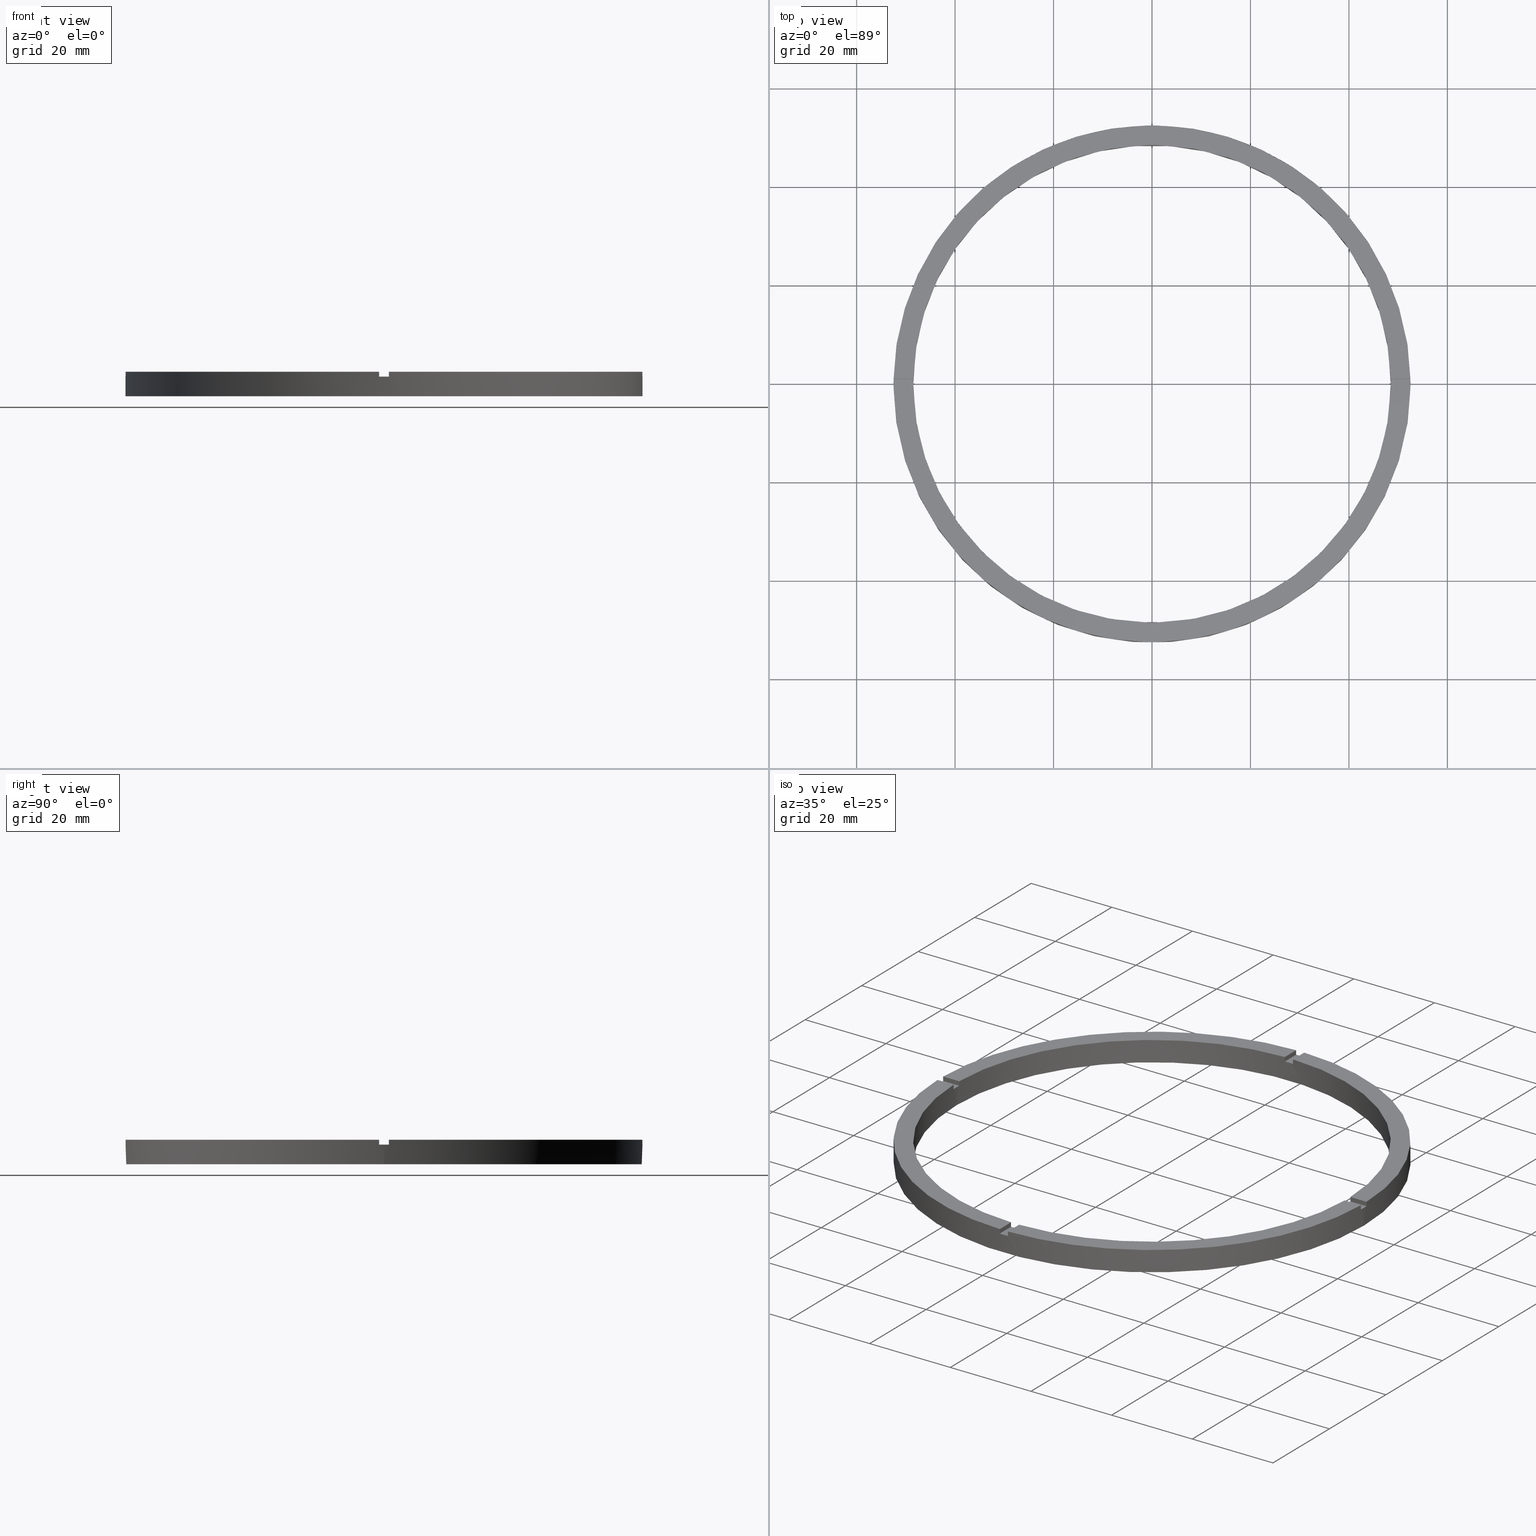
[diagram: canonical four-view strip — front | top / right | iso, engineering-drawing reading convention]
A machine part, canonical four-view strip (front | top / right | iso — engineering-drawing reading convention). The complete STEP part file that produces these views, byte-faithful:
ISO-10303-21;
HEADER;
FILE_DESCRIPTION (( 'STEP AP203' ),
    '1' );
FILE_NAME ('514215.step',
    '2024-12-26T02:48:53',
    ( 'MSI' ),
    ( '' ),
    'SwSTEP 2.0',
    'SolidWorks 2020',
    '' );
FILE_SCHEMA (( 'CONFIG_CONTROL_DESIGN' ));
ENDSEC;

DATA;
#1 = AXIS2_PLACEMENT_3D ( 'NONE', #769, #89, #151 ) ;
#2 =( LENGTH_UNIT ( ) NAMED_UNIT ( * ) SI_UNIT ( .MILLI., .METRE. ) );
#3 = EDGE_CURVE ( 'NONE', #420, #404, #581, .T. ) ;
#4 = DIRECTION ( 'NONE',  ( 0.000000000000000000, 1.000000000000000000, 0.000000000000000000 ) ) ;
#5 = ADVANCED_FACE ( 'NONE', ( #328 ), #274, .F. ) ;
#6 = DIRECTION ( 'NONE',  ( 1.000000000000000000, 0.000000000000000000, 0.000000000000000000 ) ) ;
#7 = CARTESIAN_POINT ( 'NONE',  ( -52.49047532648184244, -1.000000000000032196, 5.000000000000000000 ) ) ;
#8 = APPROVAL_ROLE ( '' ) ;
#9 = CARTESIAN_POINT ( 'NONE',  ( -1.000000000000027089, 48.48968962573384545, 5.000000000000000000 ) ) ;
#10 = DIRECTION ( 'NONE',  ( 1.000000000000000000, 0.000000000000000000, 0.000000000000000000 ) ) ;
#11 = ADVANCED_FACE ( 'NONE', ( #331 ), #645, .F. ) ;
#12 = DIRECTION ( 'NONE',  ( 1.000000000000000000, 0.000000000000000000, 0.000000000000000000 ) ) ;
#13 = CARTESIAN_POINT ( 'NONE',  ( 0.000000000000000000, 0.000000000000000000, 4.000000000000000000 ) ) ;
#14 = DIRECTION ( 'NONE',  ( 1.000000000000000000, 0.000000000000000000, 0.000000000000000000 ) ) ;
#15 = SECURITY_CLASSIFICATION_LEVEL ( 'unclassified' ) ;
#16 = EDGE_CURVE ( 'NONE', #160, #200, #290, .T. ) ;
#17 = CARTESIAN_POINT ( 'NONE',  ( 0.9999999999999729106, 48.48968962573384545, 5.000000000000000000 ) ) ;
#18 = APPLICATION_PROTOCOL_DEFINITION ( 'international standard', 'config_control_design', 1994, #454 ) ;
#19 = CARTESIAN_POINT ( 'NONE',  ( 0.000000000000000000, 0.000000000000000000, 0.000000000000000000 ) ) ;
#20 = DIRECTION ( 'NONE',  ( -0.000000000000000000, -0.000000000000000000, -1.000000000000000000 ) ) ;
#21 = AXIS2_PLACEMENT_3D ( 'NONE', #343, #568, #696 ) ;
#22 = DIRECTION ( 'NONE',  ( 1.000000000000000000, 0.000000000000000000, 0.000000000000000000 ) ) ;
#23 = EDGE_CURVE ( 'NONE', #203, #705, #52, .T. ) ;
#24 = EDGE_CURVE ( 'NONE', #146, #671, #57, .T. ) ;
#25 = DIRECTION ( 'NONE',  ( 1.000000000000000000, 0.000000000000000000, 0.000000000000000000 ) ) ;
#26 = LINE ( 'NONE', #112, #313 ) ;
#27 = LINE ( 'NONE', #17, #579 ) ;
#28 = VECTOR ( 'NONE', #522, 1000.000000000000000 ) ;
#29 = EDGE_CURVE ( 'NONE', #387, #460, #38, .T. ) ;
#30 = DIRECTION ( 'NONE',  ( 1.000000000000000000, 0.000000000000000000, 0.000000000000000000 ) ) ;
#31 = CIRCLE ( 'NONE', #768, 48.50000000000000000 ) ;
#32 = FACE_OUTER_BOUND ( 'NONE', #458, .T. ) ;
#33 = LINE ( 'NONE', #471, #566 ) ;
#34 = FACE_OUTER_BOUND ( 'NONE', #667, .T. ) ;
#35 = CARTESIAN_POINT ( 'NONE',  ( 52.49047532648184244, -1.000000000000154765, 5.000000000000000000 ) ) ;
#36 = CIRCLE ( 'NONE', #88, 48.50000000000000000 ) ;
#37 = FACE_OUTER_BOUND ( 'NONE', #666, .T. ) ;
#38 = CIRCLE ( 'NONE', #523, 48.50000000000000000 ) ;
#39 = VECTOR ( 'NONE', #638, 1000.000000000000000 ) ;
#40 = VECTOR ( 'NONE', #120, 1000.000000000000000 ) ;
#41 = DIRECTION ( 'NONE',  ( -6.505213034913025371E-17, 1.000000000000000000, 0.000000000000000000 ) ) ;
#42 = FACE_OUTER_BOUND ( 'NONE', #660, .T. ) ;
#43 = FACE_OUTER_BOUND ( 'NONE', #405, .T. ) ;
#44 = AXIS2_PLACEMENT_3D ( 'NONE', #50, #41, #429 ) ;
#45 = CARTESIAN_POINT ( 'NONE',  ( 42.49999999999998579, 0.9999999999998445688, 5.000000000000000000 ) ) ;
#46 = LINE ( 'NONE', #269, #558 ) ;
#47 = VERTEX_POINT ( 'NONE', #65 ) ;
#48 = DIRECTION ( 'NONE',  ( -1.951563910473907735E-16, 1.000000000000000000, 0.000000000000000000 ) ) ;
#49 = LINE ( 'NONE', #714, #51 ) ;
#50 = CARTESIAN_POINT ( 'NONE',  ( 42.49999999999998579, 0.9999999999998445688, 4.000000000000000000 ) ) ;
#51 = VECTOR ( 'NONE', #531, 1000.000000000000000 ) ;
#52 = LINE ( 'NONE', #424, #333 ) ;
#53 = VECTOR ( 'NONE', #258, 1000.000000000000000 ) ;
#54 =( NAMED_UNIT ( * ) PLANE_ANGLE_UNIT ( ) SI_UNIT ( $, .RADIAN. ) );
#55 = VECTOR ( 'NONE', #4, 1000.000000000000000 ) ;
#56 = CARTESIAN_POINT ( 'NONE',  ( 0.9999999999999729106, 42.49999999999999289, 4.000000000000000000 ) ) ;
#57 = CIRCLE ( 'NONE', #239, 48.50000000000000000 ) ;
#58 = LINE ( 'NONE', #542, #623 ) ;
#59 = EDGE_CURVE ( 'NONE', #316, #431, #576, .T. ) ;
#60 = AXIS2_PLACEMENT_3D ( 'NONE', #73, #615, #251 ) ;
#61 = DIRECTION ( 'NONE',  ( -0.000000000000000000, -0.000000000000000000, -1.000000000000000000 ) ) ;
#62 = DIRECTION ( 'NONE',  ( 1.000000000000000000, 0.000000000000000000, 0.000000000000000000 ) ) ;
#63 = CARTESIAN_POINT ( 'NONE',  ( 0.000000000000000000, 0.000000000000000000, 5.000000000000000000 ) ) ;
#64 = DIRECTION ( 'NONE',  ( -0.000000000000000000, -0.000000000000000000, -1.000000000000000000 ) ) ;
#65 = CARTESIAN_POINT ( 'NONE',  ( 0.9999999999998436806, -52.49047532648184955, 4.000000000000000000 ) ) ;
#66 = CARTESIAN_POINT ( 'NONE',  ( 0.000000000000000000, 0.000000000000000000, 4.000000000000000000 ) ) ;
#67 = ADVANCED_FACE ( 'NONE', ( #315 ), #616, .F. ) ;
#68 = AXIS2_PLACEMENT_3D ( 'NONE', #326, #459, #128 ) ;
#69 = DIRECTION ( 'NONE',  ( -1.000000000000000000, 0.000000000000000000, 0.000000000000000000 ) ) ;
#70 = AXIS2_PLACEMENT_3D ( 'NONE', #66, #247, #12 ) ;
#71 = LINE ( 'NONE', #541, #74 ) ;
#72 = EDGE_CURVE ( 'NONE', #657, #749, #561, .T. ) ;
#73 = CARTESIAN_POINT ( 'NONE',  ( 0.000000000000000000, 0.000000000000000000, 5.000000000000000000 ) ) ;
#74 = VECTOR ( 'NONE', #320, 1000.000000000000000 ) ;
#75 = CARTESIAN_POINT ( 'NONE',  ( 0.9999999999999729106, 42.49999999999999289, 4.000000000000000000 ) ) ;
#76 = LINE ( 'NONE', #282, #84 ) ;
#77 = LINE ( 'NONE', #139, #345 ) ;
#78 = APPLICATION_CONTEXT ( 'configuration controlled 3d designs of mechanical parts and assemblies' ) ;
#79 = DIRECTION ( 'NONE',  ( 0.000000000000000000, 0.000000000000000000, 1.000000000000000000 ) ) ;
#80 = DIRECTION ( 'NONE',  ( 0.000000000000000000, 0.000000000000000000, 1.000000000000000000 ) ) ;
#81 = CARTESIAN_POINT ( 'NONE',  ( 0.9999999999999729106, 52.49047532648184244, 4.000000000000000000 ) ) ;
#82 = CIRCLE ( 'NONE', #100, 48.50000000000000000 ) ;
#83 = CARTESIAN_POINT ( 'NONE',  ( -48.48968962573384545, -1.000000000000031530, 5.000000000000000000 ) ) ;
#84 = VECTOR ( 'NONE', #181, 1000.000000000000000 ) ;
#85 = CYLINDRICAL_SURFACE ( 'NONE', #614, 48.50000000000000000 ) ;
#86 = FACE_OUTER_BOUND ( 'NONE', #235, .T. ) ;
#87 = CIRCLE ( 'NONE', #721, 48.50000000000000000 ) ;
#88 = AXIS2_PLACEMENT_3D ( 'NONE', #305, #746, #14 ) ;
#89 = DIRECTION ( 'NONE',  ( 0.000000000000000000, 0.000000000000000000, 1.000000000000000000 ) ) ;
#90 = VECTOR ( 'NONE', #504, 1000.000000000000000 ) ;
#91 = EDGE_CURVE ( 'NONE', #144, #699, #36, .T. ) ;
#92 = CIRCLE ( 'NONE', #252, 48.50000000000000000 ) ;
#93 = CARTESIAN_POINT ( 'NONE',  ( -52.49047532648184244, 0.9999999999999679146, 5.000000000000000000 ) ) ;
#94 = LINE ( 'NONE', #687, #98 ) ;
#95 = LINE ( 'NONE', #555, #604 ) ;
#96 = VECTOR ( 'NONE', #264, 1000.000000000000000 ) ;
#97 = APPROVAL ( #266, 'δָ��' ) ;
#98 = VECTOR ( 'NONE', #184, 1000.000000000000000 ) ;
#99 = DIRECTION ( 'NONE',  ( 0.000000000000000000, 0.000000000000000000, 1.000000000000000000 ) ) ;
#100 = AXIS2_PLACEMENT_3D ( 'NONE', #19, #79, #22 ) ;
#101 = EDGE_CURVE ( 'NONE', #717, #657, #300, .T. ) ;
#102 = EDGE_CURVE ( 'NONE', #47, #686, #318, .T. ) ;
#103 = COORDINATED_UNIVERSAL_TIME_OFFSET ( 8, 0, .AHEAD. ) ;
#104 = ORGANIZATION ( 'δָ��', 'δָ��', '' ) ;
#105 = LOCAL_TIME ( 10, 48, 53.00000000000000000, #633 ) ;
#106 = LOCAL_TIME ( 10, 48, 53.00000000000000000, #103 ) ;
#107 = DIRECTION ( 'NONE',  ( -1.000000000000000000, 0.000000000000000000, 0.000000000000000000 ) ) ;
#108 = PERSON_AND_ORGANIZATION ( #113, #104 ) ;
#109 = AXIS2_PLACEMENT_3D ( 'NONE', #487, #612, #665 ) ;
#110 = APPROVAL_DATE_TIME ( #379, #97 ) ;
#111 = CARTESIAN_POINT ( 'NONE',  ( 0.000000000000000000, 0.000000000000000000, 4.000000000000000000 ) ) ;
#112 = CARTESIAN_POINT ( 'NONE',  ( 42.49999999999998579, -1.000000000000155431, 4.000000000000000000 ) ) ;
#113 = PERSON ( 'δָ��', 'δָ��', 'δָ��', ('δָ��'), ('δָ��'), ('δָ��') ) ;
#114 = CARTESIAN_POINT ( 'NONE',  ( 0.000000000000000000, 0.000000000000000000, 4.000000000000000000 ) ) ;
#115 =( NAMED_UNIT ( * ) SI_UNIT ( $, .STERADIAN. ) SOLID_ANGLE_UNIT ( ) );
#116 = ADVANCED_FACE ( 'NONE', ( #32 ), #762, .F. ) ;
#117 = PLANE ( 'NONE',  #301 ) ;
#118 = EDGE_LOOP ( 'NONE', ( #163, #461, #428, #744 ) ) ;
#119 = DIRECTION ( 'NONE',  ( 0.000000000000000000, 0.000000000000000000, 1.000000000000000000 ) ) ;
#120 = DIRECTION ( 'NONE',  ( -1.000000000000000000, -1.951563910473907735E-16, 0.000000000000000000 ) ) ;
#121 = DIRECTION ( 'NONE',  ( 6.505213034913025371E-17, -1.000000000000000000, 0.000000000000000000 ) ) ;
#122 = AXIS2_PLACEMENT_3D ( 'NONE', #371, #362, #436 ) ;
#123 = PLANE ( 'NONE',  #535 ) ;
#124 = EDGE_CURVE ( 'NONE', #472, #419, #321, .T. ) ;
#125 = EDGE_CURVE ( 'NONE', #141, #173, #27, .T. ) ;
#126 = DIRECTION ( 'NONE',  ( 0.000000000000000000, 0.000000000000000000, 1.000000000000000000 ) ) ;
#127 = PLANE ( 'NONE',  #560 ) ;
#128 = DIRECTION ( 'NONE',  ( 1.000000000000000000, 0.000000000000000000, 0.000000000000000000 ) ) ;
#129 = DIRECTION ( 'NONE',  ( 0.000000000000000000, 1.000000000000000000, 0.000000000000000000 ) ) ;
#130 = ORIENTED_EDGE ( 'NONE', *, *, #16, .T. ) ;
#131 = CARTESIAN_POINT ( 'NONE',  ( 0.9999999999998425704, -42.50000000000017764, 4.000000000000000000 ) ) ;
#132 = VERTEX_POINT ( 'NONE', #627 ) ;
#133 = DIRECTION ( 'NONE',  ( 1.000000000000000000, 0.000000000000000000, 0.000000000000000000 ) ) ;
#134 = AXIS2_PLACEMENT_3D ( 'NONE', #302, #743, #501 ) ;
#135 = ORIENTED_EDGE ( 'NONE', *, *, #91, .T. ) ;
#136 = EDGE_CURVE ( 'NONE', #146, #686, #551, .T. ) ;
#137 = EDGE_CURVE ( 'NONE', #210, #671, #49, .T. ) ;
#138 = ORIENTED_EDGE ( 'NONE', *, *, #276, .F. ) ;
#139 = CARTESIAN_POINT ( 'NONE',  ( 0.9999999999999729106, 42.49999999999999289, 5.000000000000000000 ) ) ;
#140 = ORIENTED_EDGE ( 'NONE', *, *, #136, .T. ) ;
#141 = VERTEX_POINT ( 'NONE', #588 ) ;
#142 = CARTESIAN_POINT ( 'NONE',  ( 0.000000000000000000, 0.000000000000000000, 5.000000000000000000 ) ) ;
#143 = ORIENTED_EDGE ( 'NONE', *, *, #169, .F. ) ;
#144 = VERTEX_POINT ( 'NONE', #777 ) ;
#145 = CARTESIAN_POINT ( 'NONE',  ( -1.000000000000027089, 52.49047532648184244, 5.000000000000000000 ) ) ;
#146 = VERTEX_POINT ( 'NONE', #414 ) ;
#147 = AXIS2_PLACEMENT_3D ( 'NONE', #174, #537, #298 ) ;
#148 = ORIENTED_EDGE ( 'NONE', *, *, #716, .T. ) ;
#149 = ORIENTED_EDGE ( 'NONE', *, *, #468, .T. ) ;
#150 = ORIENTED_EDGE ( 'NONE', *, *, #155, .T. ) ;
#151 = DIRECTION ( 'NONE',  ( 1.000000000000000000, 0.000000000000000000, -0.000000000000000000 ) ) ;
#152 = ORIENTED_EDGE ( 'NONE', *, *, #590, .T. ) ;
#153 = VERTEX_POINT ( 'NONE', #35 ) ;
#154 = EDGE_LOOP ( 'NONE', ( #182, #495, #423, #500 ) ) ;
#155 = EDGE_CURVE ( 'NONE', #387, #316, #585, .T. ) ;
#156 = ORIENTED_EDGE ( 'NONE', *, *, #422, .T. ) ;
#157 = ORIENTED_EDGE ( 'NONE', *, *, #780, .F. ) ;
#158 = ORIENTED_EDGE ( 'NONE', *, *, #59, .F. ) ;
#159 = ORIENTED_EDGE ( 'NONE', *, *, #124, .F. ) ;
#160 = VERTEX_POINT ( 'NONE', #273 ) ;
#161 = EDGE_LOOP ( 'NONE', ( #578, #140, #691, #221 ) ) ;
#162 = ORIENTED_EDGE ( 'NONE', *, *, #306, .T. ) ;
#163 = ORIENTED_EDGE ( 'NONE', *, *, #383, .F. ) ;
#164 = ORIENTED_EDGE ( 'NONE', *, *, #663, .F. ) ;
#165 = ORIENTED_EDGE ( 'NONE', *, *, #468, .F. ) ;
#166 = AXIS2_PLACEMENT_3D ( 'NONE', #409, #517, #30 ) ;
#167 = EDGE_LOOP ( 'NONE', ( #498, #178 ) ) ;
#168 = VERTEX_POINT ( 'NONE', #215 ) ;
#169 = EDGE_CURVE ( 'NONE', #198, #688, #299, .T. ) ;
#170 = DIRECTION ( 'NONE',  ( 0.000000000000000000, 0.000000000000000000, 1.000000000000000000 ) ) ;
#171 = ORIENTED_EDGE ( 'NONE', *, *, #781, .F. ) ;
#172 = ORIENTED_EDGE ( 'NONE', *, *, #680, .T. ) ;
#173 = VERTEX_POINT ( 'NONE', #220 ) ;
#174 = CARTESIAN_POINT ( 'NONE',  ( 0.000000000000000000, 0.000000000000000000, 5.000000000000000000 ) ) ;
#175 = ORIENTED_EDGE ( 'NONE', *, *, #564, .T. ) ;
#176 = EDGE_LOOP ( 'NONE', ( #426, #165, #513, #753 ) ) ;
#177 = AXIS2_PLACEMENT_3D ( 'NONE', #385, #280, #355 ) ;
#178 = ORIENTED_EDGE ( 'NONE', *, *, #59, .T. ) ;
#179 = ORIENTED_EDGE ( 'NONE', *, *, #72, .T. ) ;
#180 = EDGE_CURVE ( 'NONE', #421, #168, #573, .T. ) ;
#181 = DIRECTION ( 'NONE',  ( 0.000000000000000000, 0.000000000000000000, 1.000000000000000000 ) ) ;
#182 = ORIENTED_EDGE ( 'NONE', *, *, #422, .F. ) ;
#183 = DIRECTION ( 'NONE',  ( -0.000000000000000000, -0.000000000000000000, -1.000000000000000000 ) ) ;
#184 = DIRECTION ( 'NONE',  ( 0.000000000000000000, 0.000000000000000000, 1.000000000000000000 ) ) ;
#185 = ORIENTED_EDGE ( 'NONE', *, *, #590, .F. ) ;
#186 = DIRECTION ( 'NONE',  ( 1.000000000000000000, 0.000000000000000000, 0.000000000000000000 ) ) ;
#187 = ORIENTED_EDGE ( 'NONE', *, *, #603, .F. ) ;
#188 = ORIENTED_EDGE ( 'NONE', *, *, #639, .F. ) ;
#189 = DIRECTION ( 'NONE',  ( -0.000000000000000000, -0.000000000000000000, -1.000000000000000000 ) ) ;
#190 = ORIENTED_EDGE ( 'NONE', *, *, #639, .T. ) ;
#191 = CARTESIAN_POINT ( 'NONE',  ( 0.000000000000000000, 0.000000000000000000, 4.000000000000000000 ) ) ;
#192 = DIRECTION ( 'NONE',  ( -1.301042606982605074E-16, 1.000000000000000000, 0.000000000000000000 ) ) ;
#193 = DIRECTION ( 'NONE',  ( 1.000000000000000000, 6.505213034913025371E-17, 0.000000000000000000 ) ) ;
#194 = ORIENTED_EDGE ( 'NONE', *, *, #3, .T. ) ;
#195 = CARTESIAN_POINT ( 'NONE',  ( 52.50000000000000000, 6.429395695523603956E-15, 4.000000000000000000 ) ) ;
#196 = DIRECTION ( 'NONE',  ( 1.000000000000000000, 0.000000000000000000, 0.000000000000000000 ) ) ;
#197 = CARTESIAN_POINT ( 'NONE',  ( -1.000000000000027089, 42.49999999999999289, 4.000000000000000000 ) ) ;
#198 = VERTEX_POINT ( 'NONE', #81 ) ;
#199 = CARTESIAN_POINT ( 'NONE',  ( 0.000000000000000000, 0.000000000000000000, 4.000000000000000000 ) ) ;
#200 = VERTEX_POINT ( 'NONE', #464 ) ;
#201 = AXIS2_PLACEMENT_3D ( 'NONE', #75, #549, #622 ) ;
#202 = ORIENTED_EDGE ( 'NONE', *, *, #564, .F. ) ;
#203 = VERTEX_POINT ( 'NONE', #771 ) ;
#204 = ORIENTED_EDGE ( 'NONE', *, *, #395, .F. ) ;
#205 = PLANE ( 'NONE',  #485 ) ;
#206 = EDGE_LOOP ( 'NONE', ( #703, #491, #213, #747, #726, #448 ) ) ;
#207 = CARTESIAN_POINT ( 'NONE',  ( -1.000000000000157430, -42.50000000000017764, 4.000000000000000000 ) ) ;
#208 = CARTESIAN_POINT ( 'NONE',  ( 0.000000000000000000, 0.000000000000000000, 5.000000000000000000 ) ) ;
#209 = APPLICATION_PROTOCOL_DEFINITION ( 'international standard', 'config_control_design', 1994, #78 ) ;
#210 = VERTEX_POINT ( 'NONE', #526 ) ;
#211 = CARTESIAN_POINT ( 'NONE',  ( 0.000000000000000000, 0.000000000000000000, 4.000000000000000000 ) ) ;
#212 = ORIENTED_EDGE ( 'NONE', *, *, #306, .F. ) ;
#213 = ORIENTED_EDGE ( 'NONE', *, *, #479, .T. ) ;
#214 = ORIENTED_EDGE ( 'NONE', *, *, #125, .T. ) ;
#215 = CARTESIAN_POINT ( 'NONE',  ( 52.50000000000000000, 6.429395695523603956E-15, 0.000000000000000000 ) ) ;
#216 = ORIENTED_EDGE ( 'NONE', *, *, #229, .F. ) ;
#217 = EDGE_CURVE ( 'NONE', #484, #688, #574, .T. ) ;
#218 = DIRECTION ( 'NONE',  ( 1.301042606982605074E-16, -1.000000000000000000, 0.000000000000000000 ) ) ;
#219 = ORIENTED_EDGE ( 'NONE', *, *, #155, .F. ) ;
#220 = CARTESIAN_POINT ( 'NONE',  ( 0.9999999999999729106, 48.48968962573384545, 5.000000000000000000 ) ) ;
#221 = ORIENTED_EDGE ( 'NONE', *, *, #536, .F. ) ;
#222 = CC_DESIGN_APPROVAL ( #532, ( #637 ) ) ;
#223 = CARTESIAN_POINT ( 'NONE',  ( 52.49047532648184244, -1.000000000000154765, 4.000000000000000000 ) ) ;
#224 = CARTESIAN_POINT ( 'NONE',  ( 0.000000000000000000, 0.000000000000000000, 5.000000000000000000 ) ) ;
#225 = ORIENTED_EDGE ( 'NONE', *, *, #275, .T. ) ;
#226 = CARTESIAN_POINT ( 'NONE',  ( 0.9999999999999729106, 52.49047532648184244, 5.000000000000000000 ) ) ;
#227 = ORIENTED_EDGE ( 'NONE', *, *, #465, .F. ) ;
#228 = PRODUCT ( '514215', '514215', '', ( #389 ) ) ;
#229 = EDGE_CURVE ( 'NONE', #420, #476, #550, .T. ) ;
#230 = ORIENTED_EDGE ( 'NONE', *, *, #242, .F. ) ;
#231 = ORIENTED_EDGE ( 'NONE', *, *, #562, .T. ) ;
#232 = PERSON_AND_ORGANIZATION ( #113, #104 ) ;
#233 = ORIENTED_EDGE ( 'NONE', *, *, #479, .F. ) ;
#234 = DATE_AND_TIME ( #772, #776 ) ;
#235 = EDGE_LOOP ( 'NONE', ( #469, #150, #410, #709, #416, #643, #724, #659, #148, #654, #642, #463 ) ) ;
#236 = COORDINATED_UNIVERSAL_TIME_OFFSET ( 8, 0, .AHEAD. ) ;
#237 = PLANE ( 'NONE',  #109 ) ;
#238 = COORDINATED_UNIVERSAL_TIME_OFFSET ( 8, 0, .AHEAD. ) ;
#239 = AXIS2_PLACEMENT_3D ( 'NONE', #594, #527, #496 ) ;
#240 = COORDINATED_UNIVERSAL_TIME_OFFSET ( 8, 0, .AHEAD. ) ;
#241 = APPROVAL_DATE_TIME ( #234, #445 ) ;
#242 = EDGE_CURVE ( 'NONE', #717, #413, #304, .T. ) ;
#243 = DIRECTION ( 'NONE',  ( -0.000000000000000000, -0.000000000000000000, -1.000000000000000000 ) ) ;
#244 = DIRECTION ( 'NONE',  ( 0.000000000000000000, 0.000000000000000000, 1.000000000000000000 ) ) ;
#245 = APPROVAL_DATE_TIME ( #249, #532 ) ;
#246 = CC_DESIGN_PERSON_AND_ORGANIZATION_ASSIGNMENT ( #628, #755, ( #754 ) ) ;
#247 = DIRECTION ( 'NONE',  ( -0.000000000000000000, 0.000000000000000000, 1.000000000000000000 ) ) ;
#248 = CARTESIAN_POINT ( 'NONE',  ( -42.50000000000018474, 0.9999999999999699130, 4.000000000000000000 ) ) ;
#249 = DATE_AND_TIME ( #770, #511 ) ;
#250 = AXIS2_PLACEMENT_3D ( 'NONE', #224, #272, #402 ) ;
#251 = DIRECTION ( 'NONE',  ( 1.000000000000000000, 0.000000000000000000, -0.000000000000000000 ) ) ;
#252 = AXIS2_PLACEMENT_3D ( 'NONE', #329, #372, #392 ) ;
#253 = EDGE_CURVE ( 'NONE', #160, #404, #553, .T. ) ;
#254 = CARTESIAN_POINT ( 'NONE',  ( 52.49047532648184244, -1.000000000000154765, 5.000000000000000000 ) ) ;
#255 = PERSON_AND_ORGANIZATION ( #113, #104 ) ;
#256 = ADVANCED_FACE ( 'NONE', ( #583 ), #521, .T. ) ;
#257 = DIRECTION ( 'NONE',  ( 1.000000000000000000, 1.301042606982605074E-16, 0.000000000000000000 ) ) ;
#258 = DIRECTION ( 'NONE',  ( 1.000000000000000000, 1.951563910473907735E-16, -0.000000000000000000 ) ) ;
#259 = CC_DESIGN_PERSON_AND_ORGANIZATION_ASSIGNMENT ( #497, #267, ( #528 ) ) ;
#260 = CARTESIAN_POINT ( 'NONE',  ( 0.000000000000000000, 0.000000000000000000, 0.000000000000000000 ) ) ;
#261 = ADVANCED_FACE ( 'NONE', ( #37 ), #325, .T. ) ;
#262 = AXIS2_PLACEMENT_3D ( 'NONE', #263, #534, #644 ) ;
#263 = CARTESIAN_POINT ( 'NONE',  ( 0.000000000000000000, 0.000000000000000000, 4.000000000000000000 ) ) ;
#264 = DIRECTION ( 'NONE',  ( -0.000000000000000000, -0.000000000000000000, -1.000000000000000000 ) ) ;
#265 = ADVANCED_FACE ( 'NONE', ( #42 ), #584, .T. ) ;
#266 = APPROVAL_STATUS ( 'not_yet_approved' ) ;
#267 = PERSON_AND_ORGANIZATION_ROLE ( 'creator' ) ;
#268 = DESIGN_CONTEXT ( 'detailed design', #454, 'design' ) ;
#269 = CARTESIAN_POINT ( 'NONE',  ( -1.000000000000157430, -42.50000000000017764, 5.000000000000000000 ) ) ;
#270 = DIRECTION ( 'NONE',  ( 0.000000000000000000, 0.000000000000000000, 1.000000000000000000 ) ) ;
#271 = CARTESIAN_POINT ( 'NONE',  ( 48.48968962573384545, 0.9999999999998450129, 4.000000000000000000 ) ) ;
#272 = DIRECTION ( 'NONE',  ( 0.000000000000000000, 0.000000000000000000, 1.000000000000000000 ) ) ;
#273 = CARTESIAN_POINT ( 'NONE',  ( -52.49047532648184244, 0.9999999999999679146, 4.000000000000000000 ) ) ;
#274 = PLANE ( 'NONE',  #559 ) ;
#275 = EDGE_CURVE ( 'NONE', #141, #198, #319, .T. ) ;
#276 = EDGE_CURVE ( 'NONE', #702, #641, #324, .T. ) ;
#277 = CC_DESIGN_APPROVAL ( #445, ( #528 ) ) ;
#278 = AXIS2_PLACEMENT_3D ( 'NONE', #447, #257, #192 ) ;
#279 = DIRECTION ( 'NONE',  ( -0.000000000000000000, -0.000000000000000000, -1.000000000000000000 ) ) ;
#280 = DIRECTION ( 'NONE',  ( -1.000000000000000000, -1.301042606982605074E-16, 0.000000000000000000 ) ) ;
#281 = CIRCLE ( 'NONE', #713, 52.50000000000000000 ) ;
#282 = CARTESIAN_POINT ( 'NONE',  ( -1.000000000000156319, -52.49047532648184244, 5.000000000000000000 ) ) ;
#283 = VECTOR ( 'NONE', #348, 1000.000000000000000 ) ;
#284 = LINE ( 'NONE', #427, #286 ) ;
#285 = CARTESIAN_POINT ( 'NONE',  ( -1.000000000000156319, -52.49047532648184244, 4.000000000000000000 ) ) ;
#286 = VECTOR ( 'NONE', #499, 1000.000000000000000 ) ;
#287 = VECTOR ( 'NONE', #292, 1000.000000000000000 ) ;
#288 = CARTESIAN_POINT ( 'NONE',  ( 48.48968962573384545, -1.000000000000154987, 5.000000000000000000 ) ) ;
#289 = VECTOR ( 'NONE', #398, 1000.000000000000000 ) ;
#290 = CIRCLE ( 'NONE', #418, 52.50000000000000000 ) ;
#291 = ADVANCED_FACE ( 'NONE', ( #43 ), #117, .F. ) ;
#292 = DIRECTION ( 'NONE',  ( -0.000000000000000000, -0.000000000000000000, -1.000000000000000000 ) ) ;
#293 = FACE_OUTER_BOUND ( 'NONE', #206, .T. ) ;
#294 = DIRECTION ( 'NONE',  ( 1.000000000000000000, 0.000000000000000000, 0.000000000000000000 ) ) ;
#295 = LINE ( 'NONE', #336, #563 ) ;
#296 = VECTOR ( 'NONE', #557, 1000.000000000000000 ) ;
#297 = MANIFOLD_SOLID_BREP ( '�г�-����1', #486 ) ;
#298 = DIRECTION ( 'NONE',  ( -1.000000000000000000, 0.000000000000000000, 0.000000000000000000 ) ) ;
#299 = LINE ( 'NONE', #226, #39 ) ;
#300 = LINE ( 'NONE', #322, #567 ) ;
#301 = AXIS2_PLACEMENT_3D ( 'NONE', #248, #48, #538 ) ;
#302 = CARTESIAN_POINT ( 'NONE',  ( 0.000000000000000000, 0.000000000000000000, 4.000000000000000000 ) ) ;
#303 = DIRECTION ( 'NONE',  ( 0.000000000000000000, -0.000000000000000000, 1.000000000000000000 ) ) ;
#304 = CIRCLE ( 'NONE', #391, 52.50000000000000000 ) ;
#305 = CARTESIAN_POINT ( 'NONE',  ( 0.000000000000000000, 0.000000000000000000, 4.000000000000000000 ) ) ;
#306 = EDGE_CURVE ( 'NONE', #476, #705, #308, .T. ) ;
#307 = ADVANCED_FACE ( 'NONE', ( #34 ), #658, .T. ) ;
#308 = LINE ( 'NONE', #9, #287 ) ;
#309 = CARTESIAN_POINT ( 'NONE',  ( 0.000000000000000000, 0.000000000000000000, 5.000000000000000000 ) ) ;
#310 = FACE_OUTER_BOUND ( 'NONE', #731, .T. ) ;
#311 = FACE_OUTER_BOUND ( 'NONE', #655, .T. ) ;
#312 = CARTESIAN_POINT ( 'NONE',  ( -1.000000000000156763, -48.48968962573384545, 4.000000000000000000 ) ) ;
#313 = VECTOR ( 'NONE', #719, 1000.000000000000000 ) ;
#314 = ORIENTED_EDGE ( 'NONE', *, *, #91, .F. ) ;
#315 = FACE_OUTER_BOUND ( 'NONE', #118, .T. ) ;
#316 = VERTEX_POINT ( 'NONE', #647 ) ;
#317 = DATE_TIME_ROLE ( 'creation_date' ) ;
#318 = LINE ( 'NONE', #131, #569 ) ;
#319 = LINE ( 'NONE', #56, #55 ) ;
#320 = DIRECTION ( 'NONE',  ( -0.000000000000000000, -0.000000000000000000, -1.000000000000000000 ) ) ;
#321 = LINE ( 'NONE', #207, #296 ) ;
#322 = CARTESIAN_POINT ( 'NONE',  ( -52.49047532648184244, -1.000000000000032196, 5.000000000000000000 ) ) ;
#323 = EDGE_CURVE ( 'NONE', #671, #153, #284, .T. ) ;
#324 = CIRCLE ( 'NONE', #632, 52.50000000000000000 ) ;
#325 = PLANE ( 'NONE',  #21 ) ;
#326 = CARTESIAN_POINT ( 'NONE',  ( 0.000000000000000000, 0.000000000000000000, 0.000000000000000000 ) ) ;
#327 = CYLINDRICAL_SURFACE ( 'NONE', #359, 48.50000000000000000 ) ;
#328 = FACE_OUTER_BOUND ( 'NONE', #417, .T. ) ;
#329 = CARTESIAN_POINT ( 'NONE',  ( 0.000000000000000000, 0.000000000000000000, 4.000000000000000000 ) ) ;
#330 = ADVANCED_BREP_SHAPE_REPRESENTATION ( '514215', ( #297, #68 ), #483 ) ;
#331 = FACE_OUTER_BOUND ( 'NONE', #430, .T. ) ;
#332 = AXIS2_PLACEMENT_3D ( 'NONE', #111, #442, #544 ) ;
#333 = VECTOR ( 'NONE', #649, 1000.000000000000000 ) ;
#334 = CARTESIAN_POINT ( 'NONE',  ( -42.50000000000018474, 0.9999999999999699130, 4.000000000000000000 ) ) ;
#335 = DIRECTION ( 'NONE',  ( -0.000000000000000000, -1.000000000000000000, -0.000000000000000000 ) ) ;
#336 = CARTESIAN_POINT ( 'NONE',  ( 0.9999999999998425704, -42.50000000000017764, 5.000000000000000000 ) ) ;
#337 = VECTOR ( 'NONE', #378, 1000.000000000000000 ) ;
#338 = DIRECTION ( 'NONE',  ( 0.000000000000000000, 0.000000000000000000, 1.000000000000000000 ) ) ;
#339 = CIRCLE ( 'NONE', #676, 52.50000000000000000 ) ;
#340 = FACE_OUTER_BOUND ( 'NONE', #456, .T. ) ;
#341 = LINE ( 'NONE', #83, #96 ) ;
#342 = VECTOR ( 'NONE', #533, 1000.000000000000000 ) ;
#343 = CARTESIAN_POINT ( 'NONE',  ( 0.000000000000000000, 0.000000000000000000, 5.000000000000000000 ) ) ;
#344 = CIRCLE ( 'NONE', #70, 48.50000000000000000 ) ;
#345 = VECTOR ( 'NONE', #129, 1000.000000000000000 ) ;
#346 = VECTOR ( 'NONE', #462, 1000.000000000000000 ) ;
#347 = EDGE_CURVE ( 'NONE', #419, #47, #281, .T. ) ;
#348 = DIRECTION ( 'NONE',  ( -0.000000000000000000, -0.000000000000000000, -1.000000000000000000 ) ) ;
#349 = LINE ( 'NONE', #492, #611 ) ;
#350 = FACE_OUTER_BOUND ( 'NONE', #710, .T. ) ;
#351 = FACE_OUTER_BOUND ( 'NONE', #681, .T. ) ;
#352 = LINE ( 'NONE', #450, #90 ) ;
#353 = CARTESIAN_POINT ( 'NONE',  ( 0.9999999999998432365, -48.48968962573384545, 4.000000000000000000 ) ) ;
#354 = LINE ( 'NONE', #606, #357 ) ;
#355 = DIRECTION ( 'NONE',  ( 1.301042606982605074E-16, -1.000000000000000000, 0.000000000000000000 ) ) ;
#356 = CYLINDRICAL_SURFACE ( 'NONE', #147, 52.50000000000000000 ) ;
#357 = VECTOR ( 'NONE', #243, 1000.000000000000000 ) ;
#358 = LINE ( 'NONE', #254, #613 ) ;
#359 = AXIS2_PLACEMENT_3D ( 'NONE', #520, #64, #69 ) ;
#360 = CARTESIAN_POINT ( 'NONE',  ( 0.000000000000000000, 0.000000000000000000, 5.000000000000000000 ) ) ;
#361 = CIRCLE ( 'NONE', #601, 48.50000000000000000 ) ;
#362 = DIRECTION ( 'NONE',  ( 0.000000000000000000, 0.000000000000000000, 1.000000000000000000 ) ) ;
#363 = EDGE_CURVE ( 'NONE', #673, #404, #548, .T. ) ;
#364 = FACE_OUTER_BOUND ( 'NONE', #739, .T. ) ;
#365 = DIRECTION ( 'NONE',  ( 1.000000000000000000, 0.000000000000000000, 0.000000000000000000 ) ) ;
#366 = CIRCLE ( 'NONE', #575, 52.50000000000000000 ) ;
#367 = ADVANCED_FACE ( 'NONE', ( #310 ), #489, .F. ) ;
#368 = DIRECTION ( 'NONE',  ( 1.000000000000000000, 0.000000000000000000, 0.000000000000000000 ) ) ;
#369 = UNCERTAINTY_MEASURE_WITH_UNIT (LENGTH_MEASURE( 1.000000000000000082E-05 ), #2, 'distance_accuracy_value', 'NONE');
#370 = PERSON_AND_ORGANIZATION ( #113, #104 ) ;
#371 = CARTESIAN_POINT ( 'NONE',  ( 0.000000000000000000, 0.000000000000000000, 4.000000000000000000 ) ) ;
#372 = DIRECTION ( 'NONE',  ( 0.000000000000000000, 0.000000000000000000, 1.000000000000000000 ) ) ;
#373 = CALENDAR_DATE ( 2024, 26, 12 ) ;
#374 = PERSON_AND_ORGANIZATION ( #113, #104 ) ;
#375 = ADVANCED_FACE ( 'NONE', ( #311 ), #592, .T. ) ;
#376 = CARTESIAN_POINT ( 'NONE',  ( -48.48968962573384545, 0.9999999999999685807, 5.000000000000000000 ) ) ;
#377 = DATE_TIME_ROLE ( 'classification_date' ) ;
#378 = DIRECTION ( 'NONE',  ( -0.000000000000000000, -0.000000000000000000, -1.000000000000000000 ) ) ;
#379 = DATE_AND_TIME ( #629, #105 ) ;
#380 = DIRECTION ( 'NONE',  ( 0.000000000000000000, 0.000000000000000000, 1.000000000000000000 ) ) ;
#381 = CARTESIAN_POINT ( 'NONE',  ( 48.48968962573384545, 0.9999999999998450129, 5.000000000000000000 ) ) ;
#382 = DIRECTION ( 'NONE',  ( 0.000000000000000000, 0.000000000000000000, 1.000000000000000000 ) ) ;
#383 = EDGE_CURVE ( 'NONE', #210, #457, #26, .T. ) ;
#384 = PERSON_AND_ORGANIZATION_ROLE ( 'design_owner' ) ;
#385 = CARTESIAN_POINT ( 'NONE',  ( -1.000000000000157430, -42.50000000000017764, 4.000000000000000000 ) ) ;
#386 = DIRECTION ( 'NONE',  ( 0.000000000000000000, -0.000000000000000000, 1.000000000000000000 ) ) ;
#387 = VERTEX_POINT ( 'NONE', #609 ) ;
#388 = CC_DESIGN_DATE_AND_TIME_ASSIGNMENT ( #634, #317, ( #754 ) ) ;
#389 = MECHANICAL_CONTEXT ( 'NONE', #78, 'mechanical' ) ;
#390 = ORIENTED_EDGE ( 'NONE', *, *, #781, .T. ) ;
#391 = AXIS2_PLACEMENT_3D ( 'NONE', #399, #338, #133 ) ;
#392 = DIRECTION ( 'NONE',  ( 1.000000000000000000, 0.000000000000000000, 0.000000000000000000 ) ) ;
#393 = EDGE_CURVE ( 'NONE', #475, #437, #31, .T. ) ;
#394 = ORIENTED_EDGE ( 'NONE', *, *, #3, .F. ) ;
#395 = EDGE_CURVE ( 'NONE', #200, #657, #577, .T. ) ;
#396 = ORIENTED_EDGE ( 'NONE', *, *, #169, .T. ) ;
#397 = ORIENTED_EDGE ( 'NONE', *, *, #505, .F. ) ;
#398 = DIRECTION ( 'NONE',  ( -1.000000000000000000, -1.951563910473907735E-16, 0.000000000000000000 ) ) ;
#399 = CARTESIAN_POINT ( 'NONE',  ( 0.000000000000000000, 0.000000000000000000, 5.000000000000000000 ) ) ;
#400 = AXIS2_PLACEMENT_3D ( 'NONE', #722, #782, #368 ) ;
#401 = DIRECTION ( 'NONE',  ( -1.301042606982605074E-16, 1.000000000000000000, -0.000000000000000000 ) ) ;
#402 = DIRECTION ( 'NONE',  ( 1.000000000000000000, 0.000000000000000000, 0.000000000000000000 ) ) ;
#403 = DIRECTION ( 'NONE',  ( 1.000000000000000000, 0.000000000000000000, -0.000000000000000000 ) ) ;
#404 = VERTEX_POINT ( 'NONE', #783 ) ;
#405 = EDGE_LOOP ( 'NONE', ( #482, #689, #412, #415 ) ) ;
#406 = ORIENTED_EDGE ( 'NONE', *, *, #663, .T. ) ;
#407 = ORIENTED_EDGE ( 'NONE', *, *, #16, .F. ) ;
#408 = DIRECTION ( 'NONE',  ( 1.000000000000000000, 1.951563910473907735E-16, 0.000000000000000000 ) ) ;
#409 = CARTESIAN_POINT ( 'NONE',  ( 0.000000000000000000, 0.000000000000000000, 0.000000000000000000 ) ) ;
#410 = ORIENTED_EDGE ( 'NONE', *, *, #589, .F. ) ;
#411 = EDGE_LOOP ( 'NONE', ( #434, #162, #451, #690 ) ) ;
#412 = ORIENTED_EDGE ( 'NONE', *, *, #363, .T. ) ;
#413 = VERTEX_POINT ( 'NONE', #546 ) ;
#414 = CARTESIAN_POINT ( 'NONE',  ( 0.9999999999998432365, -48.48968962573384545, 5.000000000000000000 ) ) ;
#415 = ORIENTED_EDGE ( 'NONE', *, *, #253, .F. ) ;
#416 = ORIENTED_EDGE ( 'NONE', *, *, #603, .T. ) ;
#417 = EDGE_LOOP ( 'NONE', ( #692, #718, #701, #682 ) ) ;
#418 = AXIS2_PLACEMENT_3D ( 'NONE', #199, #382, #186 ) ;
#419 = VERTEX_POINT ( 'NONE', #285 ) ;
#420 = VERTEX_POINT ( 'NONE', #145 ) ;
#421 = VERTEX_POINT ( 'NONE', #636 ) ;
#422 = EDGE_CURVE ( 'NONE', #437, #413, #46, .T. ) ;
#423 = ORIENTED_EDGE ( 'NONE', *, *, #748, .F. ) ;
#424 = CARTESIAN_POINT ( 'NONE',  ( -1.000000000000027089, 42.49999999999999289, 4.000000000000000000 ) ) ;
#425 = DIRECTION ( 'NONE',  ( 0.000000000000000000, 0.000000000000000000, 1.000000000000000000 ) ) ;
#426 = ORIENTED_EDGE ( 'NONE', *, *, #530, .F. ) ;
#427 = CARTESIAN_POINT ( 'NONE',  ( 42.49999999999998579, -1.000000000000155431, 5.000000000000000000 ) ) ;
#428 = ORIENTED_EDGE ( 'NONE', *, *, #323, .T. ) ;
#429 = DIRECTION ( 'NONE',  ( -1.000000000000000000, -6.505213034913025371E-17, 0.000000000000000000 ) ) ;
#430 = EDGE_LOOP ( 'NONE', ( #480, #190, #233, #729 ) ) ;
#431 = VERTEX_POINT ( 'NONE', #700 ) ;
#432 = EDGE_CURVE ( 'NONE', #144, #160, #556, .T. ) ;
#433 = EDGE_CURVE ( 'NONE', #484, #641, #33, .T. ) ;
#434 = ORIENTED_EDGE ( 'NONE', *, *, #229, .T. ) ;
#435 = ADVANCED_FACE ( 'NONE', ( #293 ), #572, .T. ) ;
#436 = DIRECTION ( 'NONE',  ( 1.000000000000000000, 0.000000000000000000, -0.000000000000000000 ) ) ;
#437 = VERTEX_POINT ( 'NONE', #524 ) ;
#438 = DIRECTION ( 'NONE',  ( 1.000000000000000000, 0.000000000000000000, 0.000000000000000000 ) ) ;
#439 = ORIENTED_EDGE ( 'NONE', *, *, #217, .F. ) ;
#440 = ORIENTED_EDGE ( 'NONE', *, *, #124, .T. ) ;
#441 = CC_DESIGN_SECURITY_CLASSIFICATION ( #637, ( #528 ) ) ;
#442 = DIRECTION ( 'NONE',  ( 0.000000000000000000, 0.000000000000000000, 1.000000000000000000 ) ) ;
#443 = ORIENTED_EDGE ( 'NONE', *, *, #395, .T. ) ;
#444 = PERSON_AND_ORGANIZATION_ROLE ( 'classification_officer' ) ;
#445 = APPROVAL ( #624, 'δָ��' ) ;
#446 = EDGE_LOOP ( 'NONE', ( #466, #695, #185, #225 ) ) ;
#447 = CARTESIAN_POINT ( 'NONE',  ( 0.9999999999998425704, -42.50000000000017764, 4.000000000000000000 ) ) ;
#448 = ORIENTED_EDGE ( 'NONE', *, *, #383, .T. ) ;
#449 = DIRECTION ( 'NONE',  ( 0.000000000000000000, 0.000000000000000000, 1.000000000000000000 ) ) ;
#450 = CARTESIAN_POINT ( 'NONE',  ( 52.50000000000000000, 6.429395695523603956E-15, 5.000000000000000000 ) ) ;
#451 = ORIENTED_EDGE ( 'NONE', *, *, #23, .F. ) ;
#452 = CARTESIAN_POINT ( 'NONE',  ( -1.000000000000027089, 48.48968962573384545, 5.000000000000000000 ) ) ;
#453 = ORIENTED_EDGE ( 'NONE', *, *, #29, .T. ) ;
#454 = APPLICATION_CONTEXT ( 'configuration controlled 3d designs of mechanical parts and assemblies' ) ;
#455 = DIRECTION ( 'NONE',  ( 0.000000000000000000, 0.000000000000000000, 1.000000000000000000 ) ) ;
#456 = EDGE_LOOP ( 'NONE', ( #164, #675, #172, #157, #685, #697, #723, #230, #488, #204, #175, #733 ) ) ;
#457 = VERTEX_POINT ( 'NONE', #223 ) ;
#458 = EDGE_LOOP ( 'NONE', ( #712, #214, #752, #143 ) ) ;
#459 = DIRECTION ( 'NONE',  ( 0.000000000000000000, 0.000000000000000000, 1.000000000000000000 ) ) ;
#460 = VERTEX_POINT ( 'NONE', #271 ) ;
#461 = ORIENTED_EDGE ( 'NONE', *, *, #137, .T. ) ;
#462 = DIRECTION ( 'NONE',  ( -1.000000000000000000, -6.505213034913025371E-17, -0.000000000000000000 ) ) ;
#463 = ORIENTED_EDGE ( 'NONE', *, *, #137, .F. ) ;
#464 = CARTESIAN_POINT ( 'NONE',  ( -52.50000000000000000, 0.000000000000000000, 4.000000000000000000 ) ) ;
#465 = EDGE_CURVE ( 'NONE', #132, #146, #295, .T. ) ;
#466 = ORIENTED_EDGE ( 'NONE', *, *, #505, .T. ) ;
#467 = DIRECTION ( 'NONE',  ( -0.000000000000000000, -0.000000000000000000, -1.000000000000000000 ) ) ;
#468 = EDGE_CURVE ( 'NONE', #478, #173, #600, .T. ) ;
#469 = ORIENTED_EDGE ( 'NONE', *, *, #545, .T. ) ;
#470 = PRODUCT_DEFINITION_SHAPE ( 'NONE', 'NONE',  #754 ) ;
#471 = CARTESIAN_POINT ( 'NONE',  ( 52.49047532648184955, 0.9999999999998452349, 5.000000000000000000 ) ) ;
#472 = VERTEX_POINT ( 'NONE', #312 ) ;
#473 = CC_DESIGN_PERSON_AND_ORGANIZATION_ASSIGNMENT ( #374, #384, ( #228 ) ) ;
#474 = ORIENTED_EDGE ( 'NONE', *, *, #125, .F. ) ;
#475 = VERTEX_POINT ( 'NONE', #502 ) ;
#476 = VERTEX_POINT ( 'NONE', #452 ) ;
#477 = EDGE_CURVE ( 'NONE', #144, #673, #94, .T. ) ;
#478 = VERTEX_POINT ( 'NONE', #381 ) ;
#479 = EDGE_CURVE ( 'NONE', #641, #460, #617, .T. ) ;
#480 = ORIENTED_EDGE ( 'NONE', *, *, #763, .T. ) ;
#481 = ORIENTED_EDGE ( 'NONE', *, *, #715, .T. ) ;
#482 = ORIENTED_EDGE ( 'NONE', *, *, #432, .F. ) ;
#483 =( GEOMETRIC_REPRESENTATION_CONTEXT ( 3 ) GLOBAL_UNCERTAINTY_ASSIGNED_CONTEXT ( ( #369 ) ) GLOBAL_UNIT_ASSIGNED_CONTEXT ( ( #2, #54, #115 ) ) REPRESENTATION_CONTEXT ( 'NONE', 'WORKASPACE' ) );
#484 = VERTEX_POINT ( 'NONE', #677 ) ;
#485 = AXIS2_PLACEMENT_3D ( 'NONE', #13, #303, #751 ) ;
#486 = CLOSED_SHELL ( 'NONE', ( #494, #265, #261, #518, #745, #256, #727, #664, #736, #5, #291, #307, #543, #367, #375, #11, #67, #435, #598, #116, #509 ) ) ;
#487 = CARTESIAN_POINT ( 'NONE',  ( 0.000000000000000000, 0.000000000000000000, 5.000000000000000000 ) ) ;
#488 = ORIENTED_EDGE ( 'NONE', *, *, #101, .T. ) ;
#489 = PLANE ( 'NONE',  #177 ) ;
#490 = ORIENTED_EDGE ( 'NONE', *, *, #761, .T. ) ;
#491 = ORIENTED_EDGE ( 'NONE', *, *, #276, .T. ) ;
#492 = CARTESIAN_POINT ( 'NONE',  ( 48.48968962573384545, 0.9999999999998450129, 5.000000000000000000 ) ) ;
#493 = ORIENTED_EDGE ( 'NONE', *, *, #780, .T. ) ;
#494 = ADVANCED_FACE ( 'NONE', ( #86 ), #327, .F. ) ;
#495 = ORIENTED_EDGE ( 'NONE', *, *, #393, .F. ) ;
#496 = DIRECTION ( 'NONE',  ( 1.000000000000000000, 0.000000000000000000, 0.000000000000000000 ) ) ;
#497 = PERSON_AND_ORGANIZATION ( #113, #104 ) ;
#498 = ORIENTED_EDGE ( 'NONE', *, *, #589, .T. ) ;
#499 = DIRECTION ( 'NONE',  ( 1.000000000000000000, 6.505213034913025371E-17, 0.000000000000000000 ) ) ;
#500 = ORIENTED_EDGE ( 'NONE', *, *, #242, .T. ) ;
#501 = DIRECTION ( 'NONE',  ( 1.000000000000000000, 0.000000000000000000, 0.000000000000000000 ) ) ;
#502 = CARTESIAN_POINT ( 'NONE',  ( -48.48968962573384545, -1.000000000000031530, 5.000000000000000000 ) ) ;
#503 = AXIS2_PLACEMENT_3D ( 'NONE', #767, #183, #730 ) ;
#504 = DIRECTION ( 'NONE',  ( -0.000000000000000000, -0.000000000000000000, -1.000000000000000000 ) ) ;
#505 = EDGE_CURVE ( 'NONE', #198, #203, #366, .T. ) ;
#506 = DIRECTION ( 'NONE',  ( 0.000000000000000000, -0.000000000000000000, 1.000000000000000000 ) ) ;
#507 = APPROVAL_PERSON_ORGANIZATION ( #108, #445, #552 ) ;
#508 = DATE_AND_TIME ( #774, #773 ) ;
#509 = ADVANCED_FACE ( 'NONE', ( #595 ), #205, .T. ) ;
#510 = CARTESIAN_POINT ( 'NONE',  ( -48.50000000000000000, 0.000000000000000000, 4.000000000000000000 ) ) ;
#511 = LOCAL_TIME ( 10, 48, 53.00000000000000000, #238 ) ;
#512 = CARTESIAN_POINT ( 'NONE',  ( 0.000000000000000000, 0.000000000000000000, 5.000000000000000000 ) ) ;
#513 = ORIENTED_EDGE ( 'NONE', *, *, #763, .F. ) ;
#514 = CARTESIAN_POINT ( 'NONE',  ( 0.9999999999998432365, -48.48968962573384545, 5.000000000000000000 ) ) ;
#515 = APPROVAL_ROLE ( '' ) ;
#516 = CARTESIAN_POINT ( 'NONE',  ( 0.000000000000000000, 0.000000000000000000, 4.000000000000000000 ) ) ;
#517 = DIRECTION ( 'NONE',  ( 0.000000000000000000, 0.000000000000000000, 1.000000000000000000 ) ) ;
#518 = ADVANCED_FACE ( 'NONE', ( #621 ), #693, .T. ) ;
#519 = PERSON_AND_ORGANIZATION ( #113, #104 ) ;
#520 = CARTESIAN_POINT ( 'NONE',  ( 0.000000000000000000, 0.000000000000000000, 5.000000000000000000 ) ) ;
#521 = PLANE ( 'NONE',  #778 ) ;
#522 = DIRECTION ( 'NONE',  ( -0.000000000000000000, -0.000000000000000000, -1.000000000000000000 ) ) ;
#523 = AXIS2_PLACEMENT_3D ( 'NONE', #114, #244, #6 ) ;
#524 = CARTESIAN_POINT ( 'NONE',  ( -1.000000000000156763, -48.48968962573384545, 5.000000000000000000 ) ) ;
#525 = CARTESIAN_POINT ( 'NONE',  ( -42.50000000000018474, -1.000000000000030198, 4.000000000000000000 ) ) ;
#526 = CARTESIAN_POINT ( 'NONE',  ( 48.48968962573384545, -1.000000000000154987, 4.000000000000000000 ) ) ;
#527 = DIRECTION ( 'NONE',  ( 0.000000000000000000, 0.000000000000000000, 1.000000000000000000 ) ) ;
#528 = PRODUCT_DEFINITION_FORMATION_WITH_SPECIFIED_SOURCE ( '�κ�', '', #228, .NOT_KNOWN. ) ;
#529 = AXIS2_PLACEMENT_3D ( 'NONE', #142, #270, #25 ) ;
#530 = EDGE_CURVE ( 'NONE', #173, #688, #77, .T. ) ;
#531 = DIRECTION ( 'NONE',  ( 0.000000000000000000, 0.000000000000000000, 1.000000000000000000 ) ) ;
#532 = APPROVAL ( #684, 'δָ��' ) ;
#533 = DIRECTION ( 'NONE',  ( 1.000000000000000000, 1.951563910473907735E-16, -0.000000000000000000 ) ) ;
#534 = DIRECTION ( 'NONE',  ( 0.000000000000000000, 0.000000000000000000, 1.000000000000000000 ) ) ;
#535 = AXIS2_PLACEMENT_3D ( 'NONE', #260, #170, #539 ) ;
#536 = EDGE_CURVE ( 'NONE', #132, #47, #71, .T. ) ;
#537 = DIRECTION ( 'NONE',  ( -0.000000000000000000, -0.000000000000000000, -1.000000000000000000 ) ) ;
#538 = DIRECTION ( 'NONE',  ( -1.000000000000000000, -1.951563910473907735E-16, 0.000000000000000000 ) ) ;
#539 = DIRECTION ( 'NONE',  ( 1.000000000000000000, 0.000000000000000000, -0.000000000000000000 ) ) ;
#540 = CARTESIAN_POINT ( 'NONE',  ( 0.000000000000000000, 0.000000000000000000, 4.000000000000000000 ) ) ;
#541 = CARTESIAN_POINT ( 'NONE',  ( 0.9999999999998436806, -52.49047532648184955, 5.000000000000000000 ) ) ;
#542 = CARTESIAN_POINT ( 'NONE',  ( -48.50000000000000000, 0.000000000000000000, 5.000000000000000000 ) ) ;
#543 = ADVANCED_FACE ( 'NONE', ( #608 ), #661, .F. ) ;
#544 = DIRECTION ( 'NONE',  ( 1.000000000000000000, 0.000000000000000000, 0.000000000000000000 ) ) ;
#545 = EDGE_CURVE ( 'NONE', #210, #387, #361, .T. ) ;
#546 = CARTESIAN_POINT ( 'NONE',  ( -1.000000000000156319, -52.49047532648184244, 5.000000000000000000 ) ) ;
#547 = DIRECTION ( 'NONE',  ( 0.000000000000000000, 0.000000000000000000, 1.000000000000000000 ) ) ;
#548 = LINE ( 'NONE', #652, #40 ) ;
#549 = DIRECTION ( 'NONE',  ( 1.000000000000000000, -0.000000000000000000, 0.000000000000000000 ) ) ;
#550 = LINE ( 'NONE', #707, #580 ) ;
#551 = LINE ( 'NONE', #514, #283 ) ;
#552 = APPROVAL_ROLE ( '' ) ;
#553 = LINE ( 'NONE', #93, #570 ) ;
#554 = CC_DESIGN_APPROVAL ( #97, ( #754 ) ) ;
#555 = CARTESIAN_POINT ( 'NONE',  ( -1.000000000000156763, -48.48968962573384545, 5.000000000000000000 ) ) ;
#556 = LINE ( 'NONE', #334, #289 ) ;
#557 = DIRECTION ( 'NONE',  ( 1.301042606982605074E-16, -1.000000000000000000, 0.000000000000000000 ) ) ;
#558 = VECTOR ( 'NONE', #218, 1000.000000000000000 ) ;
#559 = AXIS2_PLACEMENT_3D ( 'NONE', #525, #582, #408 ) ;
#560 = AXIS2_PLACEMENT_3D ( 'NONE', #197, #565, #630 ) ;
#561 = LINE ( 'NONE', #670, #53 ) ;
#562 = EDGE_CURVE ( 'NONE', #472, #437, #95, .T. ) ;
#563 = VECTOR ( 'NONE', #401, 1000.000000000000000 ) ;
#564 = EDGE_CURVE ( 'NONE', #200, #421, #610, .T. ) ;
#565 = DIRECTION ( 'NONE',  ( -1.000000000000000000, 0.000000000000000000, 0.000000000000000000 ) ) ;
#566 = VECTOR ( 'NONE', #467, 1000.000000000000000 ) ;
#567 = VECTOR ( 'NONE', #20, 1000.000000000000000 ) ;
#568 = DIRECTION ( 'NONE',  ( 0.000000000000000000, 0.000000000000000000, 1.000000000000000000 ) ) ;
#569 = VECTOR ( 'NONE', #678, 1000.000000000000000 ) ;
#570 = VECTOR ( 'NONE', #99, 1000.000000000000000 ) ;
#571 = CC_DESIGN_DATE_AND_TIME_ASSIGNMENT ( #508, #377, ( #637 ) ) ;
#572 = PLANE ( 'NONE',  #1 ) ;
#573 = CIRCLE ( 'NONE', #166, 52.50000000000000000 ) ;
#574 = CIRCLE ( 'NONE', #529, 52.50000000000000000 ) ;
#575 = AXIS2_PLACEMENT_3D ( 'NONE', #516, #386, #10 ) ;
#576 = CIRCLE ( 'NONE', #648, 48.50000000000000000 ) ;
#577 = CIRCLE ( 'NONE', #262, 52.50000000000000000 ) ;
#578 = ORIENTED_EDGE ( 'NONE', *, *, #465, .T. ) ;
#579 = VECTOR ( 'NONE', #80, 1000.000000000000000 ) ;
#580 = VECTOR ( 'NONE', #335, 1000.000000000000000 ) ;
#581 = CIRCLE ( 'NONE', #250, 52.50000000000000000 ) ;
#582 = DIRECTION ( 'NONE',  ( 1.951563910473907735E-16, -1.000000000000000000, 0.000000000000000000 ) ) ;
#583 = FACE_OUTER_BOUND ( 'NONE', #154, .T. ) ;
#584 = CYLINDRICAL_SURFACE ( 'NONE', #503, 52.50000000000000000 ) ;
#585 = LINE ( 'NONE', #779, #28 ) ;
#586 = FACE_OUTER_BOUND ( 'NONE', #411, .T. ) ;
#587 = LINE ( 'NONE', #45, #593 ) ;
#588 = CARTESIAN_POINT ( 'NONE',  ( 0.9999999999999729106, 48.48968962573384545, 4.000000000000000000 ) ) ;
#589 = EDGE_CURVE ( 'NONE', #431, #316, #82, .T. ) ;
#590 = EDGE_CURVE ( 'NONE', #141, #705, #87, .T. ) ;
#591 = CARTESIAN_POINT ( 'NONE',  ( -42.50000000000018474, -1.000000000000030198, 5.000000000000000000 ) ) ;
#592 = PLANE ( 'NONE',  #134 ) ;
#593 = VECTOR ( 'NONE', #650, 1000.000000000000000 ) ;
#594 = CARTESIAN_POINT ( 'NONE',  ( 0.000000000000000000, 0.000000000000000000, 5.000000000000000000 ) ) ;
#595 = FACE_OUTER_BOUND ( 'NONE', #446, .T. ) ;
#596 = CARTESIAN_POINT ( 'NONE',  ( 0.9999999999999729106, 52.49047532648184244, 5.000000000000000000 ) ) ;
#597 = CIRCLE ( 'NONE', #672, 52.50000000000000000 ) ;
#598 = ADVANCED_FACE ( 'NONE', ( #586 ), #127, .F. ) ;
#599 = DIRECTION ( 'NONE',  ( -0.000000000000000000, 0.000000000000000000, 1.000000000000000000 ) ) ;
#600 = CIRCLE ( 'NONE', #757, 48.50000000000000000 ) ;
#601 = AXIS2_PLACEMENT_3D ( 'NONE', #737, #765, #668 ) ;
#602 = CIRCLE ( 'NONE', #332, 52.50000000000000000 ) ;
#603 = EDGE_CURVE ( 'NONE', #699, #749, #92, .T. ) ;
#604 = VECTOR ( 'NONE', #626, 1000.000000000000000 ) ;
#605 = EDGE_CURVE ( 'NONE', #475, #749, #341, .T. ) ;
#606 = CARTESIAN_POINT ( 'NONE',  ( -1.000000000000027089, 52.49047532648184244, 5.000000000000000000 ) ) ;
#607 = FACE_BOUND ( 'NONE', #167, .T. ) ;
#608 = FACE_OUTER_BOUND ( 'NONE', #161, .T. ) ;
#609 = CARTESIAN_POINT ( 'NONE',  ( 48.50000000000000000, 5.939536975864663363E-15, 4.000000000000000000 ) ) ;
#610 = LINE ( 'NONE', #758, #337 ) ;
#611 = VECTOR ( 'NONE', #189, 1000.000000000000000 ) ;
#612 = DIRECTION ( 'NONE',  ( 0.000000000000000000, 0.000000000000000000, 1.000000000000000000 ) ) ;
#613 = VECTOR ( 'NONE', #380, 1000.000000000000000 ) ;
#614 = AXIS2_PLACEMENT_3D ( 'NONE', #309, #61, #107 ) ;
#615 = DIRECTION ( 'NONE',  ( 0.000000000000000000, 0.000000000000000000, 1.000000000000000000 ) ) ;
#616 = PLANE ( 'NONE',  #711 ) ;
#617 = LINE ( 'NONE', #620, #346 ) ;
#618 = CARTESIAN_POINT ( 'NONE',  ( -1.000000000000027089, 48.48968962573384545, 4.000000000000000000 ) ) ;
#619 = LINE ( 'NONE', #591, #342 ) ;
#620 = CARTESIAN_POINT ( 'NONE',  ( 42.49999999999998579, 0.9999999999998445688, 4.000000000000000000 ) ) ;
#621 = FACE_OUTER_BOUND ( 'NONE', #176, .T. ) ;
#622 = DIRECTION ( 'NONE',  ( 0.000000000000000000, 0.000000000000000000, -1.000000000000000000 ) ) ;
#623 = VECTOR ( 'NONE', #279, 1000.000000000000000 ) ;
#624 = APPROVAL_STATUS ( 'not_yet_approved' ) ;
#625 = CIRCLE ( 'NONE', #400, 48.50000000000000000 ) ;
#626 = DIRECTION ( 'NONE',  ( 0.000000000000000000, 0.000000000000000000, 1.000000000000000000 ) ) ;
#627 = CARTESIAN_POINT ( 'NONE',  ( 0.9999999999998436806, -52.49047532648184955, 5.000000000000000000 ) ) ;
#628 = PERSON_AND_ORGANIZATION ( #113, #104 ) ;
#629 = CALENDAR_DATE ( 2024, 26, 12 ) ;
#630 = DIRECTION ( 'NONE',  ( 0.000000000000000000, 0.000000000000000000, 1.000000000000000000 ) ) ;
#631 = APPROVAL_PERSON_ORGANIZATION ( #370, #97, #515 ) ;
#632 = AXIS2_PLACEMENT_3D ( 'NONE', #191, #455, #725 ) ;
#633 = COORDINATED_UNIVERSAL_TIME_OFFSET ( 8, 0, .AHEAD. ) ;
#634 = DATE_AND_TIME ( #373, #106 ) ;
#635 = EDGE_CURVE ( 'NONE', #457, #702, #602, .T. ) ;
#636 = CARTESIAN_POINT ( 'NONE',  ( -52.50000000000000000, 0.000000000000000000, 0.000000000000000000 ) ) ;
#637 = SECURITY_CLASSIFICATION ( '', '', #15 ) ;
#638 = DIRECTION ( 'NONE',  ( 0.000000000000000000, 0.000000000000000000, 1.000000000000000000 ) ) ;
#639 = EDGE_CURVE ( 'NONE', #478, #460, #349, .T. ) ;
#640 = ORIENTED_EDGE ( 'NONE', *, *, #253, .T. ) ;
#641 = VERTEX_POINT ( 'NONE', #741 ) ;
#642 = ORIENTED_EDGE ( 'NONE', *, *, #24, .T. ) ;
#643 = ORIENTED_EDGE ( 'NONE', *, *, #605, .F. ) ;
#644 = DIRECTION ( 'NONE',  ( 1.000000000000000000, 0.000000000000000000, 0.000000000000000000 ) ) ;
#645 = PLANE ( 'NONE',  #44 ) ;
#646 = CARTESIAN_POINT ( 'NONE',  ( -48.48968962573384545, -1.000000000000031530, 4.000000000000000000 ) ) ;
#647 = CARTESIAN_POINT ( 'NONE',  ( 48.50000000000000000, 5.939536975864663363E-15, 0.000000000000000000 ) ) ;
#648 = AXIS2_PLACEMENT_3D ( 'NONE', #653, #449, #365 ) ;
#649 = DIRECTION ( 'NONE',  ( -0.000000000000000000, -1.000000000000000000, -0.000000000000000000 ) ) ;
#650 = DIRECTION ( 'NONE',  ( -1.000000000000000000, -6.505213034913025371E-17, -0.000000000000000000 ) ) ;
#651 = ORIENTED_EDGE ( 'NONE', *, *, #180, .F. ) ;
#652 = CARTESIAN_POINT ( 'NONE',  ( -42.50000000000018474, 0.9999999999999699130, 5.000000000000000000 ) ) ;
#653 = CARTESIAN_POINT ( 'NONE',  ( 0.000000000000000000, 0.000000000000000000, 0.000000000000000000 ) ) ;
#654 = ORIENTED_EDGE ( 'NONE', *, *, #136, .F. ) ;
#655 = EDGE_LOOP ( 'NONE', ( #740, #759, #734, #440 ) ) ;
#656 = DIRECTION ( 'NONE',  ( 1.000000000000000000, 0.000000000000000000, 0.000000000000000000 ) ) ;
#657 = VERTEX_POINT ( 'NONE', #750 ) ;
#658 = PLANE ( 'NONE',  #122 ) ;
#659 = ORIENTED_EDGE ( 'NONE', *, *, #562, .F. ) ;
#660 = EDGE_LOOP ( 'NONE', ( #138, #406, #390, #202, #407, #640, #394, #662, #397, #396, #439, #679 ) ) ;
#661 = PLANE ( 'NONE',  #278 ) ;
#662 = ORIENTED_EDGE ( 'NONE', *, *, #742, .T. ) ;
#663 = EDGE_CURVE ( 'NONE', #702, #168, #352, .T. ) ;
#664 = ADVANCED_FACE ( 'NONE', ( #340 ), #356, .T. ) ;
#665 = DIRECTION ( 'NONE',  ( 1.000000000000000000, 0.000000000000000000, -0.000000000000000000 ) ) ;
#666 = EDGE_LOOP ( 'NONE', ( #216, #194, #694, #698 ) ) ;
#667 = EDGE_LOOP ( 'NONE', ( #130, #443, #179, #187, #314, #708 ) ) ;
#668 = DIRECTION ( 'NONE',  ( 1.000000000000000000, 0.000000000000000000, 0.000000000000000000 ) ) ;
#669 = PRODUCT_RELATED_PRODUCT_CATEGORY ( 'detail', '', ( #228 ) ) ;
#670 = CARTESIAN_POINT ( 'NONE',  ( -42.50000000000018474, -1.000000000000030198, 4.000000000000000000 ) ) ;
#671 = VERTEX_POINT ( 'NONE', #288 ) ;
#672 = AXIS2_PLACEMENT_3D ( 'NONE', #728, #119, #735 ) ;
#673 = VERTEX_POINT ( 'NONE', #376 ) ;
#674 = ORIENTED_EDGE ( 'NONE', *, *, #24, .F. ) ;
#675 = ORIENTED_EDGE ( 'NONE', *, *, #635, .F. ) ;
#676 = AXIS2_PLACEMENT_3D ( 'NONE', #360, #425, #656 ) ;
#677 = CARTESIAN_POINT ( 'NONE',  ( 52.49047532648184955, 0.9999999999998452349, 5.000000000000000000 ) ) ;
#678 = DIRECTION ( 'NONE',  ( -1.301042606982605074E-16, 1.000000000000000000, -0.000000000000000000 ) ) ;
#679 = ORIENTED_EDGE ( 'NONE', *, *, #433, .T. ) ;
#680 = EDGE_CURVE ( 'NONE', #457, #153, #358, .T. ) ;
#681 = EDGE_LOOP ( 'NONE', ( #756, #674, #227, #493 ) ) ;
#682 = ORIENTED_EDGE ( 'NONE', *, *, #101, .F. ) ;
#683 = PERSON_AND_ORGANIZATION_ROLE ( 'design_supplier' ) ;
#684 = APPROVAL_STATUS ( 'not_yet_approved' ) ;
#685 = ORIENTED_EDGE ( 'NONE', *, *, #536, .T. ) ;
#686 = VERTEX_POINT ( 'NONE', #353 ) ;
#687 = CARTESIAN_POINT ( 'NONE',  ( -48.48968962573384545, 0.9999999999999685807, 5.000000000000000000 ) ) ;
#688 = VERTEX_POINT ( 'NONE', #596 ) ;
#689 = ORIENTED_EDGE ( 'NONE', *, *, #477, .T. ) ;
#690 = ORIENTED_EDGE ( 'NONE', *, *, #742, .F. ) ;
#691 = ORIENTED_EDGE ( 'NONE', *, *, #102, .F. ) ;
#692 = ORIENTED_EDGE ( 'NONE', *, *, #748, .T. ) ;
#693 = PLANE ( 'NONE',  #60 ) ;
#694 = ORIENTED_EDGE ( 'NONE', *, *, #363, .F. ) ;
#695 = ORIENTED_EDGE ( 'NONE', *, *, #23, .T. ) ;
#696 = DIRECTION ( 'NONE',  ( 1.000000000000000000, 0.000000000000000000, -0.000000000000000000 ) ) ;
#697 = ORIENTED_EDGE ( 'NONE', *, *, #347, .F. ) ;
#698 = ORIENTED_EDGE ( 'NONE', *, *, #761, .F. ) ;
#699 = VERTEX_POINT ( 'NONE', #510 ) ;
#700 = CARTESIAN_POINT ( 'NONE',  ( -48.50000000000000000, 0.000000000000000000, 0.000000000000000000 ) ) ;
#701 = ORIENTED_EDGE ( 'NONE', *, *, #72, .F. ) ;
#702 = VERTEX_POINT ( 'NONE', #195 ) ;
#703 = ORIENTED_EDGE ( 'NONE', *, *, #635, .T. ) ;
#704 = EDGE_CURVE ( 'NONE', #419, #413, #76, .T. ) ;
#705 = VERTEX_POINT ( 'NONE', #618 ) ;
#706 = ORIENTED_EDGE ( 'NONE', *, *, #477, .F. ) ;
#707 = CARTESIAN_POINT ( 'NONE',  ( -1.000000000000027089, 42.49999999999999289, 5.000000000000000000 ) ) ;
#708 = ORIENTED_EDGE ( 'NONE', *, *, #432, .T. ) ;
#709 = ORIENTED_EDGE ( 'NONE', *, *, #715, .F. ) ;
#710 = EDGE_LOOP ( 'NONE', ( #219, #453, #188, #149, #474, #152, #212, #490, #706, #135, #481, #158 ) ) ;
#711 = AXIS2_PLACEMENT_3D ( 'NONE', #732, #121, #193 ) ;
#712 = ORIENTED_EDGE ( 'NONE', *, *, #275, .F. ) ;
#713 = AXIS2_PLACEMENT_3D ( 'NONE', #540, #599, #62 ) ;
#714 = CARTESIAN_POINT ( 'NONE',  ( 48.48968962573384545, -1.000000000000154987, 5.000000000000000000 ) ) ;
#715 = EDGE_CURVE ( 'NONE', #699, #431, #58, .T. ) ;
#716 = EDGE_CURVE ( 'NONE', #472, #686, #344, .T. ) ;
#717 = VERTEX_POINT ( 'NONE', #7 ) ;
#718 = ORIENTED_EDGE ( 'NONE', *, *, #605, .T. ) ;
#719 = DIRECTION ( 'NONE',  ( 1.000000000000000000, 6.505213034913025371E-17, 0.000000000000000000 ) ) ;
#720 = CC_DESIGN_PERSON_AND_ORGANIZATION_ASSIGNMENT ( #255, #683, ( #528 ) ) ;
#721 = AXIS2_PLACEMENT_3D ( 'NONE', #211, #506, #294 ) ;
#722 = CARTESIAN_POINT ( 'NONE',  ( 0.000000000000000000, 0.000000000000000000, 5.000000000000000000 ) ) ;
#723 = ORIENTED_EDGE ( 'NONE', *, *, #704, .T. ) ;
#724 = ORIENTED_EDGE ( 'NONE', *, *, #393, .T. ) ;
#725 = DIRECTION ( 'NONE',  ( 1.000000000000000000, 0.000000000000000000, 0.000000000000000000 ) ) ;
#726 = ORIENTED_EDGE ( 'NONE', *, *, #545, .F. ) ;
#727 = ADVANCED_FACE ( 'NONE', ( #364, #607 ), #123, .F. ) ;
#728 = CARTESIAN_POINT ( 'NONE',  ( 0.000000000000000000, 0.000000000000000000, 0.000000000000000000 ) ) ;
#729 = ORIENTED_EDGE ( 'NONE', *, *, #433, .F. ) ;
#730 = DIRECTION ( 'NONE',  ( -1.000000000000000000, 0.000000000000000000, 0.000000000000000000 ) ) ;
#731 = EDGE_LOOP ( 'NONE', ( #159, #231, #156, #738 ) ) ;
#732 = CARTESIAN_POINT ( 'NONE',  ( 42.49999999999998579, -1.000000000000155431, 4.000000000000000000 ) ) ;
#733 = ORIENTED_EDGE ( 'NONE', *, *, #180, .T. ) ;
#734 = ORIENTED_EDGE ( 'NONE', *, *, #716, .F. ) ;
#735 = DIRECTION ( 'NONE',  ( 1.000000000000000000, 0.000000000000000000, 0.000000000000000000 ) ) ;
#736 = ADVANCED_FACE ( 'NONE', ( #350 ), #85, .F. ) ;
#737 = CARTESIAN_POINT ( 'NONE',  ( 0.000000000000000000, 0.000000000000000000, 4.000000000000000000 ) ) ;
#738 = ORIENTED_EDGE ( 'NONE', *, *, #704, .F. ) ;
#739 = EDGE_LOOP ( 'NONE', ( #651, #171 ) ) ;
#740 = ORIENTED_EDGE ( 'NONE', *, *, #347, .T. ) ;
#741 = CARTESIAN_POINT ( 'NONE',  ( 52.49047532648184955, 0.9999999999998452349, 4.000000000000000000 ) ) ;
#742 = EDGE_CURVE ( 'NONE', #420, #203, #354, .T. ) ;
#743 = DIRECTION ( 'NONE',  ( -0.000000000000000000, 0.000000000000000000, 1.000000000000000000 ) ) ;
#744 = ORIENTED_EDGE ( 'NONE', *, *, #680, .F. ) ;
#745 = ADVANCED_FACE ( 'NONE', ( #351 ), #237, .T. ) ;
#746 = DIRECTION ( 'NONE',  ( 0.000000000000000000, 0.000000000000000000, 1.000000000000000000 ) ) ;
#747 = ORIENTED_EDGE ( 'NONE', *, *, #29, .F. ) ;
#748 = EDGE_CURVE ( 'NONE', #717, #475, #619, .T. ) ;
#749 = VERTEX_POINT ( 'NONE', #646 ) ;
#750 = CARTESIAN_POINT ( 'NONE',  ( -52.49047532648184244, -1.000000000000032196, 4.000000000000000000 ) ) ;
#751 = DIRECTION ( 'NONE',  ( 1.000000000000000000, 0.000000000000000000, -0.000000000000000000 ) ) ;
#752 = ORIENTED_EDGE ( 'NONE', *, *, #530, .T. ) ;
#753 = ORIENTED_EDGE ( 'NONE', *, *, #217, .T. ) ;
#754 = PRODUCT_DEFINITION ( 'δ֪', '', #528, #268 ) ;
#755 = PERSON_AND_ORGANIZATION_ROLE ( 'creator' ) ;
#756 = ORIENTED_EDGE ( 'NONE', *, *, #323, .F. ) ;
#757 = AXIS2_PLACEMENT_3D ( 'NONE', #512, #547, #438 ) ;
#758 = CARTESIAN_POINT ( 'NONE',  ( -52.50000000000000000, 0.000000000000000000, 5.000000000000000000 ) ) ;
#759 = ORIENTED_EDGE ( 'NONE', *, *, #102, .T. ) ;
#760 = SHAPE_DEFINITION_REPRESENTATION ( #470, #330 ) ;
#761 = EDGE_CURVE ( 'NONE', #476, #673, #625, .T. ) ;
#762 = PLANE ( 'NONE',  #201 ) ;
#763 = EDGE_CURVE ( 'NONE', #484, #478, #587, .T. ) ;
#764 = APPROVAL_PERSON_ORGANIZATION ( #519, #532, #8 ) ;
#765 = DIRECTION ( 'NONE',  ( 0.000000000000000000, 0.000000000000000000, 1.000000000000000000 ) ) ;
#766 = CC_DESIGN_PERSON_AND_ORGANIZATION_ASSIGNMENT ( #232, #444, ( #637 ) ) ;
#767 = CARTESIAN_POINT ( 'NONE',  ( 0.000000000000000000, 0.000000000000000000, 5.000000000000000000 ) ) ;
#768 = AXIS2_PLACEMENT_3D ( 'NONE', #63, #126, #196 ) ;
#769 = CARTESIAN_POINT ( 'NONE',  ( 0.000000000000000000, 0.000000000000000000, 4.000000000000000000 ) ) ;
#770 = CALENDAR_DATE ( 2024, 26, 12 ) ;
#771 = CARTESIAN_POINT ( 'NONE',  ( -1.000000000000027089, 52.49047532648184244, 4.000000000000000000 ) ) ;
#772 = CALENDAR_DATE ( 2024, 26, 12 ) ;
#773 = LOCAL_TIME ( 10, 48, 53.00000000000000000, #240 ) ;
#774 = CALENDAR_DATE ( 2024, 26, 12 ) ;
#775 = DIRECTION ( 'NONE',  ( 0.000000000000000000, 0.000000000000000000, 1.000000000000000000 ) ) ;
#776 = LOCAL_TIME ( 10, 48, 53.00000000000000000, #236 ) ;
#777 = CARTESIAN_POINT ( 'NONE',  ( -48.48968962573384545, 0.9999999999999685807, 4.000000000000000000 ) ) ;
#778 = AXIS2_PLACEMENT_3D ( 'NONE', #208, #775, #403 ) ;
#779 = CARTESIAN_POINT ( 'NONE',  ( 48.50000000000000000, 5.939536975864663363E-15, 5.000000000000000000 ) ) ;
#780 = EDGE_CURVE ( 'NONE', #132, #153, #339, .T. ) ;
#781 = EDGE_CURVE ( 'NONE', #168, #421, #597, .T. ) ;
#782 = DIRECTION ( 'NONE',  ( 0.000000000000000000, 0.000000000000000000, 1.000000000000000000 ) ) ;
#783 = CARTESIAN_POINT ( 'NONE',  ( -52.49047532648184244, 0.9999999999999679146, 5.000000000000000000 ) ) ;
ENDSEC;
END-ISO-10303-21;
